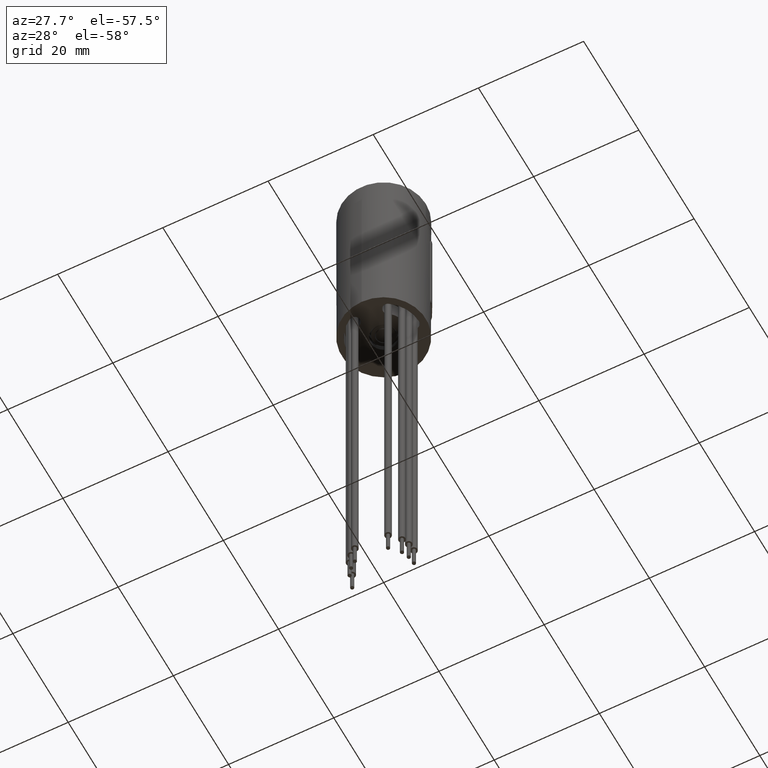
[diagram: clean part render]
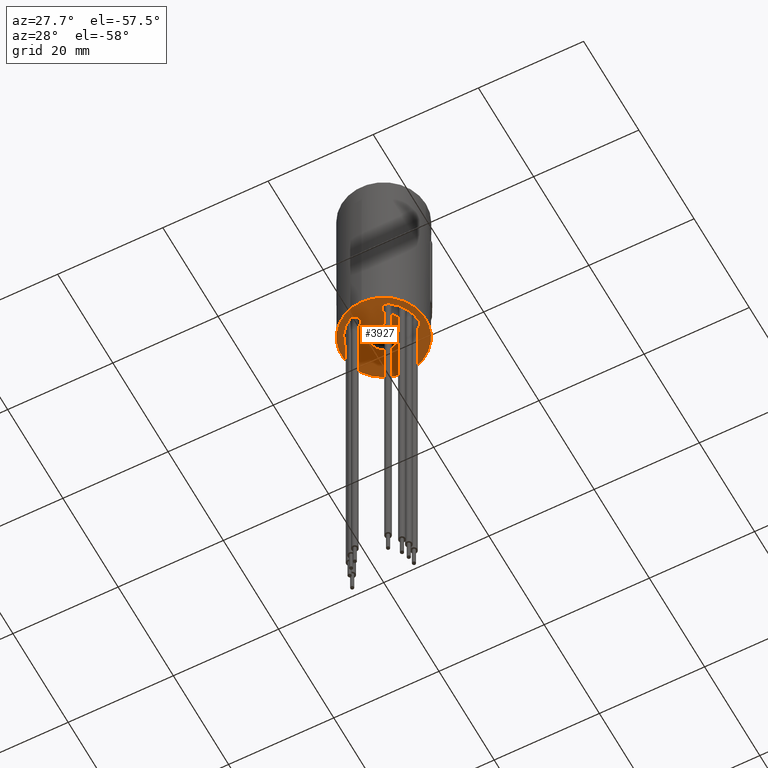
[diagram: same view with one face highlighted and labeled with its STEP entity id]
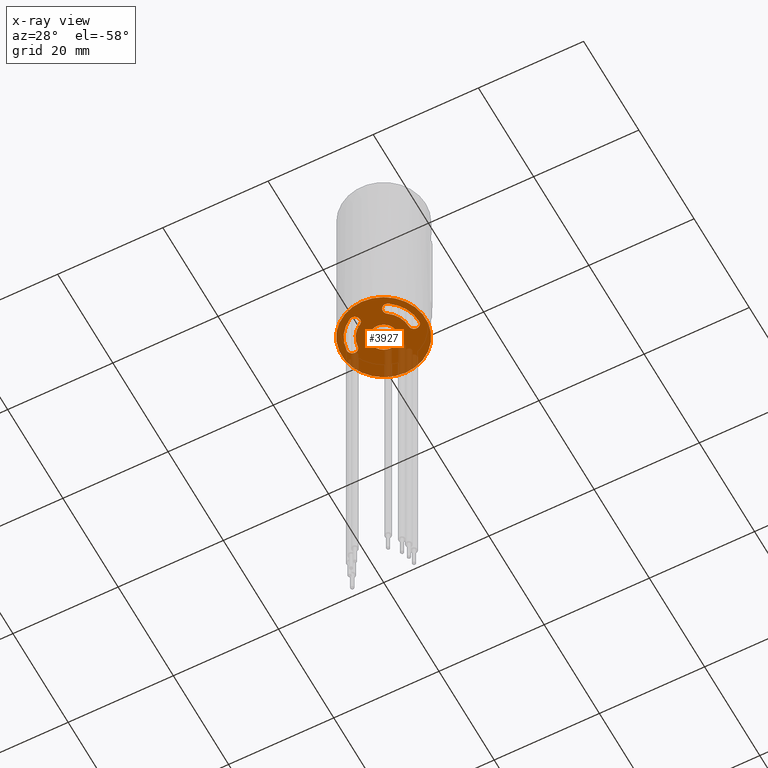
[diagram: x-ray of the same camera — body ghosted, the highlighted face saturated]
A machine part, auxiliary view. The second image highlights one B-rep face of the part: STEP entity #3927.
The next image is the same camera in x-ray: the body ghosted, the highlighted face saturated — about 17% of this face is hidden behind the body in this view.
In plain terms, the highlighted planar face has unit normal (0, 0, 1).
Its self-contained STEP definition (entity closure, byte-faithful):
#295=CARTESIAN_POINT('',(0.E0,0.E0,-1.E0));
#296=DIRECTION('',(0.E0,0.E0,1.E0));
#297=DIRECTION('',(0.E0,-1.E0,0.E0));
#298=AXIS2_PLACEMENT_3D('',#295,#296,#297);
#300=CARTESIAN_POINT('',(0.E0,0.E0,-1.E0));
#301=DIRECTION('',(0.E0,0.E0,1.E0));
#302=DIRECTION('',(0.E0,1.E0,0.E0));
#303=AXIS2_PLACEMENT_3D('',#300,#301,#302);
#305=CARTESIAN_POINT('',(0.E0,0.E0,-1.E0));
#306=DIRECTION('',(0.E0,0.E0,-1.E0));
#307=DIRECTION('',(0.E0,-1.E0,0.E0));
#308=AXIS2_PLACEMENT_3D('',#305,#306,#307);
#310=CARTESIAN_POINT('',(0.E0,0.E0,-1.E0));
#311=DIRECTION('',(0.E0,0.E0,-1.E0));
#312=DIRECTION('',(0.E0,1.E0,0.E0));
#313=AXIS2_PLACEMENT_3D('',#310,#311,#312);
#315=CARTESIAN_POINT('',(-5.728119514028E0,-5.011455207990E-1,-1.E0));
#316=DIRECTION('',(0.E0,0.E0,-1.E0));
#317=DIRECTION('',(0.E0,1.E0,0.E0));
#318=AXIS2_PLACEMENT_3D('',#315,#316,#317);
#320=CARTESIAN_POINT('',(0.E0,0.E0,-1.E0));
#321=DIRECTION('',(0.E0,0.E0,1.E0));
#322=DIRECTION('',(-9.961946980918E-1,-8.715574274761E-2,0.E0));
#323=AXIS2_PLACEMENT_3D('',#320,#321,#322);
#325=CARTESIAN_POINT('',(-2.875E0,-4.979646071761E0,-1.E0));
#326=DIRECTION('',(0.E0,0.E0,-1.E0));
#327=DIRECTION('',(4.999999999997E-1,8.660254037846E-1,0.E0));
#328=AXIS2_PLACEMENT_3D('',#325,#326,#327);
#330=CARTESIAN_POINT('',(-2.875E0,-4.979646071761E0,-1.E0));
#331=DIRECTION('',(0.E0,0.E0,-1.E0));
#332=DIRECTION('',(0.E0,-1.E0,0.E0));
#333=AXIS2_PLACEMENT_3D('',#330,#331,#332);
#335=CARTESIAN_POINT('',(0.E0,0.E0,-1.E0));
#336=DIRECTION('',(0.E0,0.E0,-1.E0));
#337=DIRECTION('',(-5.E-1,-8.660254037845E-1,0.E0));
#338=AXIS2_PLACEMENT_3D('',#335,#336,#337);
#340=CARTESIAN_POINT('',(-5.728119514028E0,-5.011455207990E-1,-1.E0));
#341=DIRECTION('',(0.E0,0.E0,-1.E0));
#342=DIRECTION('',(-9.961946980917E-1,-8.715574274784E-2,0.E0));
#343=AXIS2_PLACEMENT_3D('',#340,#341,#342);
#345=CARTESIAN_POINT('',(3.298064509019E0,-4.710124254662E0,-1.E0));
#346=DIRECTION('',(0.E0,0.E0,-1.E0));
#347=DIRECTION('',(5.735764363511E-1,-8.191520442890E-1,0.E0));
#348=AXIS2_PLACEMENT_3D('',#345,#346,#347);
#350=CARTESIAN_POINT('',(3.298064509019E0,-4.710124254662E0,-1.E0));
#351=DIRECTION('',(0.E0,0.E0,-1.E0));
#352=DIRECTION('',(0.E0,-1.E0,0.E0));
#353=AXIS2_PLACEMENT_3D('',#350,#351,#352);
#355=CARTESIAN_POINT('',(0.E0,0.E0,-1.E0));
#356=DIRECTION('',(0.E0,0.E0,1.E0));
#357=DIRECTION('',(5.735764363511E-1,-8.191520442890E-1,0.E0));
#358=AXIS2_PLACEMENT_3D('',#355,#356,#357);
#360=CARTESIAN_POINT('',(5.75E0,3.709632085874E-14,-1.E0));
#361=DIRECTION('',(0.E0,0.E0,-1.E0));
#362=DIRECTION('',(-1.E0,2.018236740406E-13,0.E0));
#363=AXIS2_PLACEMENT_3D('',#360,#361,#362);
#365=CARTESIAN_POINT('',(5.75E0,3.709632085874E-14,-1.E0));
#366=DIRECTION('',(0.E0,0.E0,-1.E0));
#367=DIRECTION('',(0.E0,1.E0,0.E0));
#368=AXIS2_PLACEMENT_3D('',#365,#366,#367);
#370=CARTESIAN_POINT('',(0.E0,0.E0,-1.E0));
#371=DIRECTION('',(0.E0,0.E0,-1.E0));
#372=DIRECTION('',(1.E0,0.E0,0.E0));
#373=AXIS2_PLACEMENT_3D('',#370,#371,#372);
#2951=CARTESIAN_POINT('',(4.75E0,1.807976639176E-13,-1.E0));
#2953=VERTEX_POINT('',#2951);
#2966=CARTESIAN_POINT('',(2.724488073998E0,-3.890972209441E0,-1.E0));
#2967=VERTEX_POINT('',#2966);
#2998=CARTESIAN_POINT('',(0.E0,-8.E0,-1.E0));
#2999=CARTESIAN_POINT('',(0.E0,8.E0,-1.E0));
#3000=VERTEX_POINT('',#2998);
#3001=VERTEX_POINT('',#2999);
#3002=CARTESIAN_POINT('',(0.E0,-2.5E0,-1.E0));
#3003=CARTESIAN_POINT('',(0.E0,2.5E0,-1.E0));
#3004=VERTEX_POINT('',#3002);
#3005=VERTEX_POINT('',#3003);
#3006=CARTESIAN_POINT('',(-5.728119514028E0,4.988544792010E-1,-1.E0));
#3007=CARTESIAN_POINT('',(-4.731924815936E0,-4.139897780512E-1,-1.E0));
#3008=VERTEX_POINT('',#3006);
#3009=VERTEX_POINT('',#3007);
#3010=CARTESIAN_POINT('',(-2.375E0,-4.113620667976E0,-1.E0));
#3011=VERTEX_POINT('',#3010);
#3012=CARTESIAN_POINT('',(-2.875E0,-5.979646071761E0,-1.E0));
#3013=VERTEX_POINT('',#3012);
#3014=CARTESIAN_POINT('',(-3.375E0,-5.845671475545E0,-1.E0));
#3015=VERTEX_POINT('',#3014);
#3016=CARTESIAN_POINT('',(-6.724314212119E0,-5.883012635468E-1,-1.E0));
#3017=VERTEX_POINT('',#3016);
#3018=CARTESIAN_POINT('',(3.871640945370E0,-5.529276298951E0,-1.E0));
#3019=CARTESIAN_POINT('',(3.298064509019E0,-5.710124254662E0,-1.E0));
#3020=VERTEX_POINT('',#3018);
#3021=VERTEX_POINT('',#3019);
#3022=CARTESIAN_POINT('',(5.75E0,1.E0,-1.E0));
#3023=VERTEX_POINT('',#3022);
#3024=CARTESIAN_POINT('',(6.75E0,-1.946382105718E-14,-1.E0));
#3025=VERTEX_POINT('',#3024);
#3884=CARTESIAN_POINT('',(0.E0,0.E0,-1.E0));
#3885=DIRECTION('',(0.E0,0.E0,1.E0));
#3886=DIRECTION('',(0.E0,1.E0,0.E0));
#3887=AXIS2_PLACEMENT_3D('',#3884,#3885,#3886);
#3888=PLANE('',#3887);
#3889=ORIENTED_EDGE('',*,*,#3749,.T.);
#3890=ORIENTED_EDGE('',*,*,#3709,.T.);
#3891=EDGE_LOOP('',(#3889,#3890));
#3892=FACE_OUTER_BOUND('',#3891,.F.);
#3894=ORIENTED_EDGE('',*,*,#3893,.T.);
#3896=ORIENTED_EDGE('',*,*,#3895,.T.);
#3897=EDGE_LOOP('',(#3894,#3896));
#3898=FACE_BOUND('',#3897,.F.);
#3900=ORIENTED_EDGE('',*,*,#3899,.T.);
#3902=ORIENTED_EDGE('',*,*,#3901,.T.);
#3904=ORIENTED_EDGE('',*,*,#3903,.T.);
#3906=ORIENTED_EDGE('',*,*,#3905,.T.);
#3908=ORIENTED_EDGE('',*,*,#3907,.T.);
#3910=ORIENTED_EDGE('',*,*,#3909,.T.);
#3911=EDGE_LOOP('',(#3900,#3902,#3904,#3906,#3908,#3910));
#3912=FACE_BOUND('',#3911,.F.);
#3914=ORIENTED_EDGE('',*,*,#3913,.T.);
#3916=ORIENTED_EDGE('',*,*,#3915,.T.);
#3918=ORIENTED_EDGE('',*,*,#3917,.T.);
#3920=ORIENTED_EDGE('',*,*,#3919,.T.);
#3922=ORIENTED_EDGE('',*,*,#3921,.T.);
#3924=ORIENTED_EDGE('',*,*,#3923,.T.);
#3925=EDGE_LOOP('',(#3914,#3916,#3918,#3920,#3922,#3924));
#3926=FACE_BOUND('',#3925,.F.);
#3927=ADVANCED_FACE('',(#3892,#3898,#3912,#3926),#3888,.F.);
#299=CIRCLE('',#298,8.E0);
#304=CIRCLE('',#303,8.E0);
#309=CIRCLE('',#308,2.5E0);
#314=CIRCLE('',#313,2.5E0);
#319=CIRCLE('',#318,1.E0);
#324=CIRCLE('',#323,4.75E0);
#329=CIRCLE('',#328,1.E0);
#334=CIRCLE('',#333,1.E0);
#339=CIRCLE('',#338,6.75E0);
#344=CIRCLE('',#343,1.E0);
#349=CIRCLE('',#348,1.E0);
#354=CIRCLE('',#353,1.E0);
#359=CIRCLE('',#358,4.75E0);
#364=CIRCLE('',#363,1.E0);
#369=CIRCLE('',#368,1.E0);
#374=CIRCLE('',#373,6.75E0);
#3709=EDGE_CURVE('',#3001,#3000,#304,.T.);
#3749=EDGE_CURVE('',#3000,#3001,#299,.T.);
#3893=EDGE_CURVE('',#3004,#3005,#309,.T.);
#3895=EDGE_CURVE('',#3005,#3004,#314,.T.);
#3899=EDGE_CURVE('',#3008,#3009,#319,.T.);
#3901=EDGE_CURVE('',#3009,#3011,#324,.T.);
#3903=EDGE_CURVE('',#3011,#3013,#329,.T.);
#3905=EDGE_CURVE('',#3013,#3015,#334,.T.);
#3907=EDGE_CURVE('',#3015,#3017,#339,.T.);
#3909=EDGE_CURVE('',#3017,#3008,#344,.T.);
#3913=EDGE_CURVE('',#3020,#3021,#349,.T.);
#3915=EDGE_CURVE('',#3021,#2967,#354,.T.);
#3917=EDGE_CURVE('',#2967,#2953,#359,.T.);
#3919=EDGE_CURVE('',#2953,#3023,#364,.T.);
#3921=EDGE_CURVE('',#3023,#3025,#369,.T.);
#3923=EDGE_CURVE('',#3025,#3020,#374,.T.);